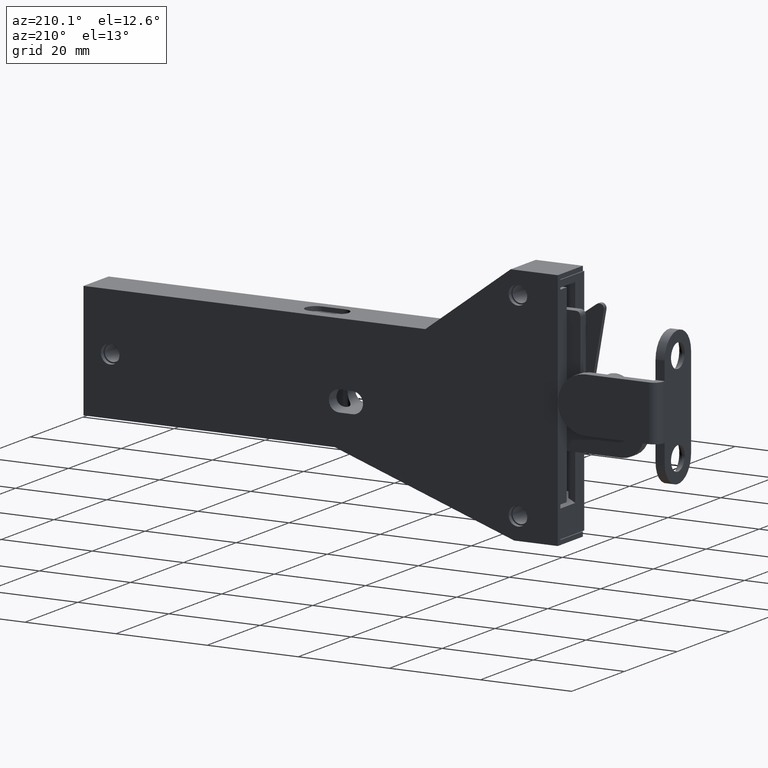
[diagram: clean part render]
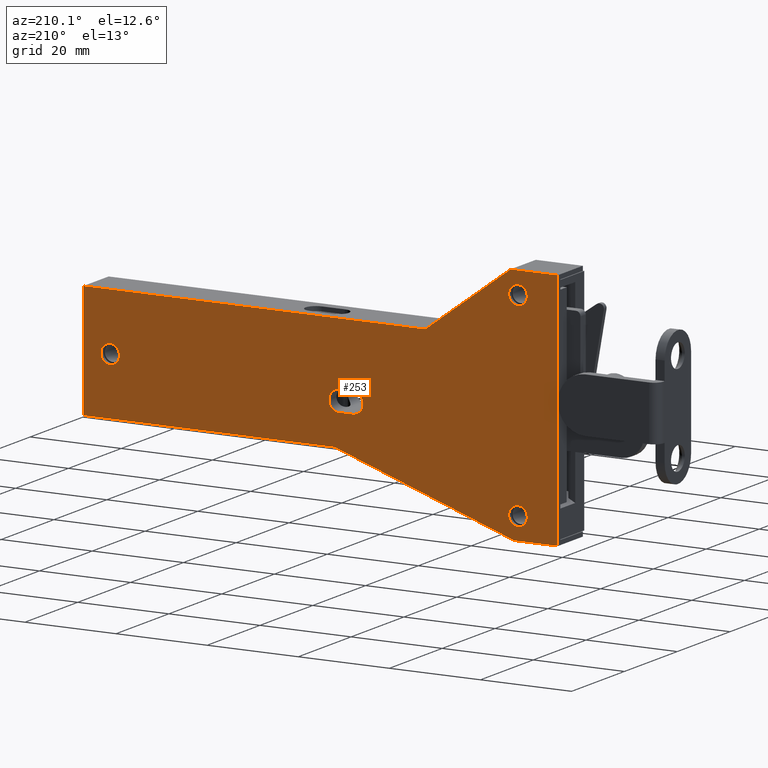
[diagram: same view with one face highlighted and labeled with its STEP entity id]
A machine part, auxiliary view. The second image highlights one B-rep face of the part: STEP entity #253.
In plain terms, the highlighted planar face has unit normal (0, 1, 0).
Its self-contained STEP definition (entity closure, byte-faithful):
#253=ADVANCED_FACE('',(#707,#708,#709,#710,#711),#706,.T.);
#706=PLANE('',#2335);
#707=FACE_OUTER_BOUND('',#2336,.T.);
#708=FACE_BOUND('',#2337,.T.);
#709=FACE_BOUND('',#2338,.T.);
#710=FACE_BOUND('',#2339,.T.);
#711=FACE_BOUND('',#2340,.T.);
#2332=CARTESIAN_POINT('',(-2.90000000000E+001,2.01240066278E-010,-2.81199999998E+001));
#2333=DIRECTION('',(-0.00000000000E+000,1.00000000000E+000,0.00000000000E+000));
#2334=DIRECTION('',(0.00000000000E+000,0.00000000000E+000,1.00000000000E+000));
#2335=AXIS2_PLACEMENT_3D('',#2332,#2333,#2334);
#2336=EDGE_LOOP('',(#3320,#3321,#3322,#3323,#3324,#3325,#3326,#3327));
#2337=EDGE_LOOP('',(#3328,#3329,#3330,#3331));
#2338=EDGE_LOOP('',(#3332,#3333));
#2339=EDGE_LOOP('',(#3334,#3335));
#2340=EDGE_LOOP('',(#3336,#3337));
#3320=ORIENTED_EDGE('',*,*,#4201,.F.);
#3321=ORIENTED_EDGE('',*,*,#4203,.F.);
#3322=ORIENTED_EDGE('',*,*,#4205,.F.);
#3323=ORIENTED_EDGE('',*,*,#4206,.F.);
#3324=ORIENTED_EDGE('',*,*,#4186,.F.);
#3325=ORIENTED_EDGE('',*,*,#4189,.F.);
#3326=ORIENTED_EDGE('',*,*,#4196,.F.);
#3327=ORIENTED_EDGE('',*,*,#4199,.F.);
#3328=ORIENTED_EDGE('',*,*,#4108,.T.);
#3329=ORIENTED_EDGE('',*,*,#4102,.T.);
#3330=ORIENTED_EDGE('',*,*,#4105,.T.);
#3331=ORIENTED_EDGE('',*,*,#4148,.T.);
#3332=ORIENTED_EDGE('',*,*,#4207,.T.);
#3333=ORIENTED_EDGE('',*,*,#4208,.T.);
#3334=ORIENTED_EDGE('',*,*,#4209,.T.);
#3335=ORIENTED_EDGE('',*,*,#4210,.T.);
#3336=ORIENTED_EDGE('',*,*,#4211,.T.);
#3337=ORIENTED_EDGE('',*,*,#4212,.T.);
#4102=EDGE_CURVE('',#4576,#4591,#4598,.T.);
#4105=EDGE_CURVE('',#4591,#4611,#4618,.T.);
#4108=EDGE_CURVE('',#4624,#4576,#4638,.T.);
#4148=EDGE_CURVE('',#4611,#4624,#4912,.T.);
#4186=EDGE_CURVE('',#5159,#5166,#5167,.T.);
#4189=EDGE_CURVE('',#5179,#5159,#5186,.T.);
#4196=EDGE_CURVE('',#5226,#5179,#5233,.T.);
#4199=EDGE_CURVE('',#5245,#5226,#5252,.T.);
#4201=EDGE_CURVE('',#5258,#5245,#5265,.T.);
#4203=EDGE_CURVE('',#5271,#5258,#5278,.T.);
#4205=EDGE_CURVE('',#5284,#5271,#5291,.T.);
#4206=EDGE_CURVE('',#5166,#5284,#5297,.T.);
#4207=EDGE_CURVE('',#5303,#5304,#5305,.T.);
#4208=EDGE_CURVE('',#5304,#5303,#5311,.T.);
#4209=EDGE_CURVE('',#5317,#5318,#5319,.T.);
#4210=EDGE_CURVE('',#5318,#5317,#5325,.T.);
#4211=EDGE_CURVE('',#5331,#5332,#5333,.T.);
#4212=EDGE_CURVE('',#5332,#5331,#5339,.T.);
#4576=VERTEX_POINT('',#7753);
#4591=VERTEX_POINT('',#7762);
#4598=LINE('',#7766,#7767);
#4611=VERTEX_POINT('',#7774);
#4618=CIRCLE('',#7781,2.25000000000E+000);
#4624=VERTEX_POINT('',#7782);
#4638=CIRCLE('',#7794,2.25000000000E+000);
#4912=LINE('',#7959,#7960);
#5159=VERTEX_POINT('',#8103);
#5166=VERTEX_POINT('',#8107);
#5167=LINE('',#8108,#8109);
#5179=VERTEX_POINT('',#8114);
#5186=LINE('',#8118,#8119);
#5226=VERTEX_POINT('',#8143);
#5233=LINE('',#8147,#8148);
#5245=VERTEX_POINT('',#8153);
#5252=LINE('',#8157,#8158);
#5258=VERTEX_POINT('',#8160);
#5265=LINE('',#8164,#8165);
#5271=VERTEX_POINT('',#8167);
#5278=LINE('',#8171,#8172);
#5284=VERTEX_POINT('',#8174);
#5291=LINE('',#8178,#8179);
#5297=LINE('',#8181,#8182);
#5303=VERTEX_POINT('',#8184);
#5304=VERTEX_POINT('',#8185);
#5305=CIRCLE('',#8189,2.05000000000E+000);
#5311=CIRCLE('',#8193,2.05000000000E+000);
#5317=VERTEX_POINT('',#8194);
#5318=VERTEX_POINT('',#8195);
#5319=CIRCLE('',#8199,2.05000000000E+000);
#5325=CIRCLE('',#8203,2.05000000000E+000);
#5331=VERTEX_POINT('',#8204);
#5332=VERTEX_POINT('',#8205);
#5333=CIRCLE('',#8209,2.05000000000E+000);
#5339=CIRCLE('',#8213,2.05000000000E+000);
#7753=CARTESIAN_POINT('',(2.90000000000E+001,2.01283434365E-010,2.25000000000E+000));
#7762=CARTESIAN_POINT('',(2.60000000000E+001,2.01283434365E-010,2.25000000000E+000));
#7766=CARTESIAN_POINT('',(2.90000000000E+001,2.01240066278E-010,2.25000000000E+000));
#7767=VECTOR('',#7768,3.00000000000E+000);
#7768=DIRECTION('',(-1.00000000000E+000,0.00000000000E+000,2.36388686403E-012));
#7774=CARTESIAN_POINT('',(2.59999999999E+001,2.01283434365E-010,-2.25000000000E+000));
#7778=CARTESIAN_POINT('',(2.60000000000E+001,2.01283434365E-010,3.69482222595E-012));
#7779=DIRECTION('',(0.00000000000E+000,-1.00000000000E+000,0.00000000000E+000));
#7780=DIRECTION('',(-0.00000000000E+000,-0.00000000000E+000,-1.00000000000E+000));
#7781=AXIS2_PLACEMENT_3D('',#7778,#7779,#7780);
#7782=CARTESIAN_POINT('',(2.89999999999E+001,2.01240066278E-010,-2.25000000000E+000));
#7791=CARTESIAN_POINT('',(2.90000000000E+001,2.01283434365E-010,-3.49587025994E-012));
#7792=DIRECTION('',(0.00000000000E+000,-1.00000000000E+000,0.00000000000E+000));
#7793=DIRECTION('',(2.40062380781E-012,0.00000000000E+000,1.00000000000E+000));
#7794=AXIS2_PLACEMENT_3D('',#7791,#7792,#7793);
#7959=CARTESIAN_POINT('',(2.59999999999E+001,2.01240066278E-010,-2.25000000000E+000));
#7960=VECTOR('',#7961,3.00000000000E+000);
#7961=DIRECTION('',(1.00000000000E+000,0.00000000000E+000,-2.36373883430E-012));
#8103=CARTESIAN_POINT('',(8.51000000014E+001,2.01283434365E-010,1.61000000014E+001));
#8107=CARTESIAN_POINT('',(1.00775250141E+001,2.01283434365E-010,1.61000000016E+001));
#8108=CARTESIAN_POINT('',(8.51000000014E+001,2.01283434365E-010,1.61000000014E+001));
#8109=VECTOR('',#8110,7.50224749874E+001);
#8110=DIRECTION('',(-1.00000000000E+000,0.00000000000E+000,2.39295927850E-012));
#8114=CARTESIAN_POINT('',(8.51000000014E+001,2.01283434365E-010,-9.10000000160E+000));
#8118=CARTESIAN_POINT('',(8.51000000014E+001,2.01283434365E-010,-9.10000000160E+000));
#8119=VECTOR('',#8120,2.52000000030E+001);
#8120=DIRECTION('',(3.03954392484E-012,0.00000000000E+000,1.00000000000E+000));
#8143=CARTESIAN_POINT('',(2.99196972160E+001,2.01283434365E-010,-9.10000000147E+000));
#8147=CARTESIAN_POINT('',(2.99196972160E+001,2.01283434365E-010,-9.10000000147E+000));
#8148=VECTOR('',#8149,5.51803027854E+001);
#8149=DIRECTION('',(1.00000000000E+000,0.00000000000E+000,-2.39246718998E-012));
#8153=CARTESIAN_POINT('',(-9.42696850286E+000,2.01283434365E-010,-2.28499999998E+001));
#8157=CARTESIAN_POINT('',(-9.42696850286E+000,2.01283434365E-010,-2.28499999998E+001));
#8158=VECTOR('',#8159,4.16800024370E+001);
#8159=DIRECTION('',(9.44017836332E-001,0.00000000000E+000,3.29894414454E-001));
#8160=CARTESIAN_POINT('',(-1.90000000000E+001,2.01283434365E-010,-2.28499999998E+001));
#8164=CARTESIAN_POINT('',(-1.90000000000E+001,2.01283434365E-010,-2.28499999998E+001));
#8165=VECTOR('',#8166,9.57303149712E+000);
#8166=DIRECTION('',(1.00000000000E+000,0.00000000000E+000,0.00000000000E+000));
#8167=CARTESIAN_POINT('',(-1.90000000000E+001,2.01283434365E-010,2.98500000002E+001));
#8171=CARTESIAN_POINT('',(-1.90000000000E+001,2.01283434365E-010,2.98500000002E+001));
#8172=VECTOR('',#8173,5.27000000000E+001);
#8173=DIRECTION('',(0.00000000000E+000,0.00000000000E+000,-1.00000000000E+000));
#8174=CARTESIAN_POINT('',(-8.66150368220E+000,2.01283434365E-010,2.98500000002E+001));
#8178=CARTESIAN_POINT('',(-8.66150368220E+000,2.01283434365E-010,2.98500000002E+001));
#8179=VECTOR('',#8180,1.03384963178E+001);
#8180=DIRECTION('',(-1.00000000000E+000,0.00000000000E+000,2.31922166253E-012));
#8181=CARTESIAN_POINT('',(1.00775250141E+001,2.01283434365E-010,1.61000000016E+001));
#8182=VECTOR('',#8183,2.32424976378E+001);
#8183=DIRECTION('',(-8.06239888170E-001,0.00000000000E+000,5.91588744588E-001));
#8184=CARTESIAN_POINT('',(-1.02500000000E+001,2.01283434365E-010,2.70500000000E+001));
#8185=CARTESIAN_POINT('',(-1.02500000000E+001,2.01283434365E-010,2.29500000000E+001));
#8186=CARTESIAN_POINT('',(-1.02500000000E+001,2.01283434365E-010,2.50000000000E+001));
#8187=DIRECTION('',(0.00000000000E+000,-1.00000000000E+000,0.00000000000E+000));
#8188=DIRECTION('',(-1.22460635382E-016,0.00000000000E+000,1.00000000000E+000));
#8189=AXIS2_PLACEMENT_3D('',#8186,#8187,#8188);
#8190=CARTESIAN_POINT('',(-1.02500000000E+001,2.01283434365E-010,2.50000000000E+001));
#8191=DIRECTION('',(0.00000000000E+000,-1.00000000000E+000,0.00000000000E+000));
#8192=DIRECTION('',(-1.22460635382E-016,0.00000000000E+000,1.00000000000E+000));
#8193=AXIS2_PLACEMENT_3D('',#8190,#8191,#8192);
#8194=CARTESIAN_POINT('',(-1.02500000000E+001,2.01283434365E-010,-1.59500000000E+001));
#8195=CARTESIAN_POINT('',(-1.02500000000E+001,2.01283434365E-010,-2.00500000000E+001));
#8196=CARTESIAN_POINT('',(-1.02500000000E+001,2.01283434365E-010,-1.80000000000E+001));
#8197=DIRECTION('',(0.00000000000E+000,-1.00000000000E+000,0.00000000000E+000));
#8198=DIRECTION('',(-1.22460635382E-016,0.00000000000E+000,1.00000000000E+000));
#8199=AXIS2_PLACEMENT_3D('',#8196,#8197,#8198);
#8200=CARTESIAN_POINT('',(-1.02500000000E+001,2.01283434365E-010,-1.80000000000E+001));
#8201=DIRECTION('',(0.00000000000E+000,-1.00000000000E+000,0.00000000000E+000));
#8202=DIRECTION('',(-1.22460635382E-016,0.00000000000E+000,1.00000000000E+000));
#8203=AXIS2_PLACEMENT_3D('',#8200,#8201,#8202);
#8204=CARTESIAN_POINT('',(7.92499999999E+001,2.01283434365E-010,5.55000000003E+000));
#8205=CARTESIAN_POINT('',(7.92499999999E+001,2.01283434365E-010,1.45000000003E+000));
#8206=CARTESIAN_POINT('',(7.92499999999E+001,2.01283434365E-010,3.50000000003E+000));
#8207=DIRECTION('',(0.00000000000E+000,-1.00000000000E+000,0.00000000000E+000));
#8208=DIRECTION('',(-1.22460635382E-016,0.00000000000E+000,1.00000000000E+000));
#8209=AXIS2_PLACEMENT_3D('',#8206,#8207,#8208);
#8210=CARTESIAN_POINT('',(7.92499999999E+001,2.01283434365E-010,3.50000000003E+000));
#8211=DIRECTION('',(0.00000000000E+000,-1.00000000000E+000,0.00000000000E+000));
#8212=DIRECTION('',(-1.22460635382E-016,0.00000000000E+000,1.00000000000E+000));
#8213=AXIS2_PLACEMENT_3D('',#8210,#8211,#8212);